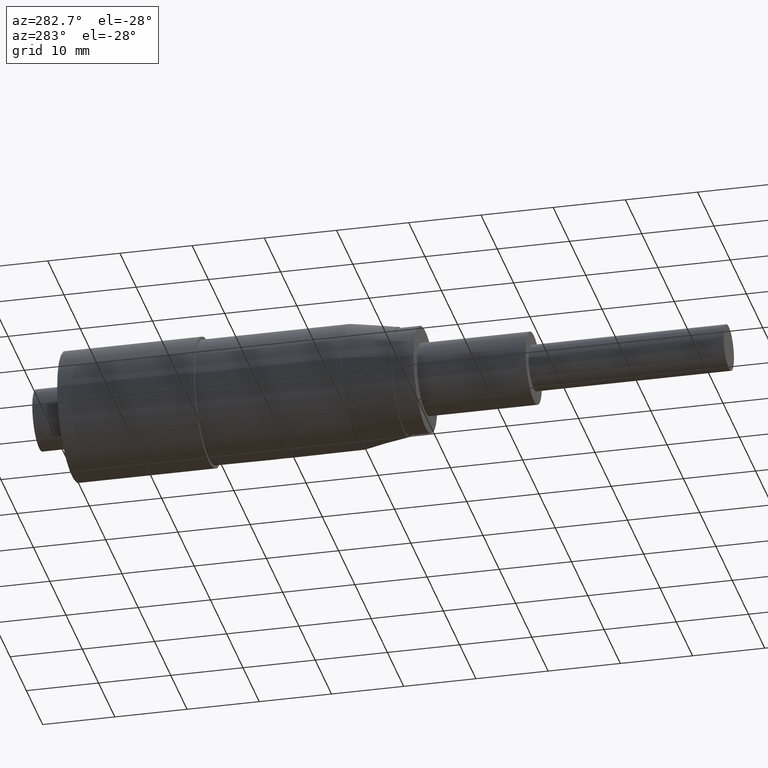
[diagram: clean part render]
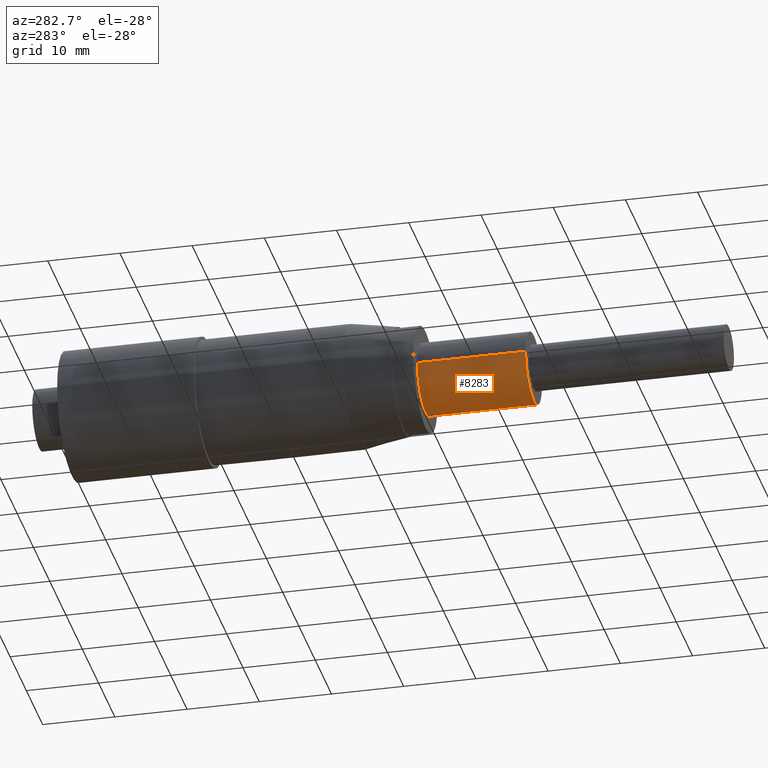
[diagram: same view with one face highlighted and labeled with its STEP entity id]
A machine part, auxiliary view. The second image highlights one B-rep face of the part: STEP entity #8283.
In plain terms, the highlighted cylindrical surface (partial cylindrical patch) has radius 5 mm, axis along (-0, 1, -0).
Its self-contained STEP definition (entity closure, byte-faithful):
#102 = VECTOR ( 'NONE', #10749, 1000.000000000000000 ) ;
#105 = AXIS2_PLACEMENT_3D ( 'NONE', #8249, #2942, #9125 ) ;
#379 = LINE ( 'NONE', #4589, #102 ) ;
#825 = VERTEX_POINT ( 'NONE', #3261 ) ;
#866 = LINE ( 'NONE', #8903, #9729 ) ;
#1329 = DIRECTION ( 'NONE',  ( -1.058937486943297600E-016, 1.000000000000000000, -0.0000000000000000000 ) ) ;
#1663 = EDGE_CURVE ( 'NONE', #825, #2950, #5097, .T. ) ;
#2638 = CYLINDRICAL_SURFACE ( 'NONE', #7702, 4.999999999999997300 ) ;
#2808 = CARTESIAN_POINT ( 'NONE',  ( 33.65296289245996800, -2.973817216099867300, 28.87709965591409000 ) ) ;
#2937 = CARTESIAN_POINT ( 'NONE',  ( 38.65296289245996800, 12.02618278390013300, 28.87709965591409000 ) ) ;
#2942 = DIRECTION ( 'NONE',  ( -1.058937486943297600E-016, 1.000000000000000000, -0.0000000000000000000 ) ) ;
#2950 = VERTEX_POINT ( 'NONE', #2974 ) ;
#2974 = CARTESIAN_POINT ( 'NONE',  ( 28.65296289245997100, -2.973817216099867700, 28.87709965591409000 ) ) ;
#2996 = DIRECTION ( 'NONE',  ( -1.058937486943297600E-016, 1.000000000000000000, -0.0000000000000000000 ) ) ;
#3261 = CARTESIAN_POINT ( 'NONE',  ( 38.65296289245996800, -2.973817216099866800, 28.87709965591409000 ) ) ;
#3263 = CARTESIAN_POINT ( 'NONE',  ( 28.65296289245997100, 12.02618278390013300, 28.87709965591409000 ) ) ;
#3628 = EDGE_CURVE ( 'NONE', #2950, #7580, #379, .T. ) ;
#3700 = DIRECTION ( 'NONE',  ( -1.000000000000000000, -8.673617379884040400E-017, 0.0000000000000000000 ) ) ;
#4116 = EDGE_CURVE ( 'NONE', #9278, #7580, #11139, .T. ) ;
#4589 = CARTESIAN_POINT ( 'NONE',  ( 28.65296289245996400, 68.06720585310775100, 28.87709965591409000 ) ) ;
#5097 = CIRCLE ( 'NONE', #6661, 4.999999999999997300 ) ;
#5456 = ORIENTED_EDGE ( 'NONE', *, *, #6105, .F. ) ;
#5968 = ORIENTED_EDGE ( 'NONE', *, *, #4116, .F. ) ;
#6105 = EDGE_CURVE ( 'NONE', #825, #9278, #866, .T. ) ;
#6357 = ORIENTED_EDGE ( 'NONE', *, *, #3628, .T. ) ;
#6661 = AXIS2_PLACEMENT_3D ( 'NONE', #2808, #9002, #3700 ) ;
#7580 = VERTEX_POINT ( 'NONE', #3263 ) ;
#7702 = AXIS2_PLACEMENT_3D ( 'NONE', #10972, #2996, #10131 ) ;
#8188 = FACE_OUTER_BOUND ( 'NONE', #8715, .T. ) ;
#8249 = CARTESIAN_POINT ( 'NONE',  ( 33.65296289245996800, 12.02618278390013300, 28.87709965591409000 ) ) ;
#8283 = ADVANCED_FACE ( 'NONE', ( #8188 ), #2638, .T. ) ;
#8715 = EDGE_LOOP ( 'NONE', ( #5456, #9467, #6357, #5968 ) ) ;
#8903 = CARTESIAN_POINT ( 'NONE',  ( 38.65296289245996100, 68.06720585310775100, 28.87709965591409000 ) ) ;
#9002 = DIRECTION ( 'NONE',  ( -1.058937486943297600E-016, 1.000000000000000000, -0.0000000000000000000 ) ) ;
#9125 = DIRECTION ( 'NONE',  ( -1.000000000000000000, 0.0000000000000000000, 0.0000000000000000000 ) ) ;
#9278 = VERTEX_POINT ( 'NONE', #2937 ) ;
#9467 = ORIENTED_EDGE ( 'NONE', *, *, #1663, .T. ) ;
#9729 = VECTOR ( 'NONE', #1329, 1000.000000000000000 ) ;
#10131 = DIRECTION ( 'NONE',  ( -1.000000000000000000, 0.0000000000000000000, 0.0000000000000000000 ) ) ;
#10749 = DIRECTION ( 'NONE',  ( -1.058937486943297600E-016, 1.000000000000000000, -0.0000000000000000000 ) ) ;
#10972 = CARTESIAN_POINT ( 'NONE',  ( 33.65296289245996100, 68.06720585310775100, 28.87709965591409000 ) ) ;
#11139 = CIRCLE ( 'NONE', #105, 4.999999999999997300 ) ;